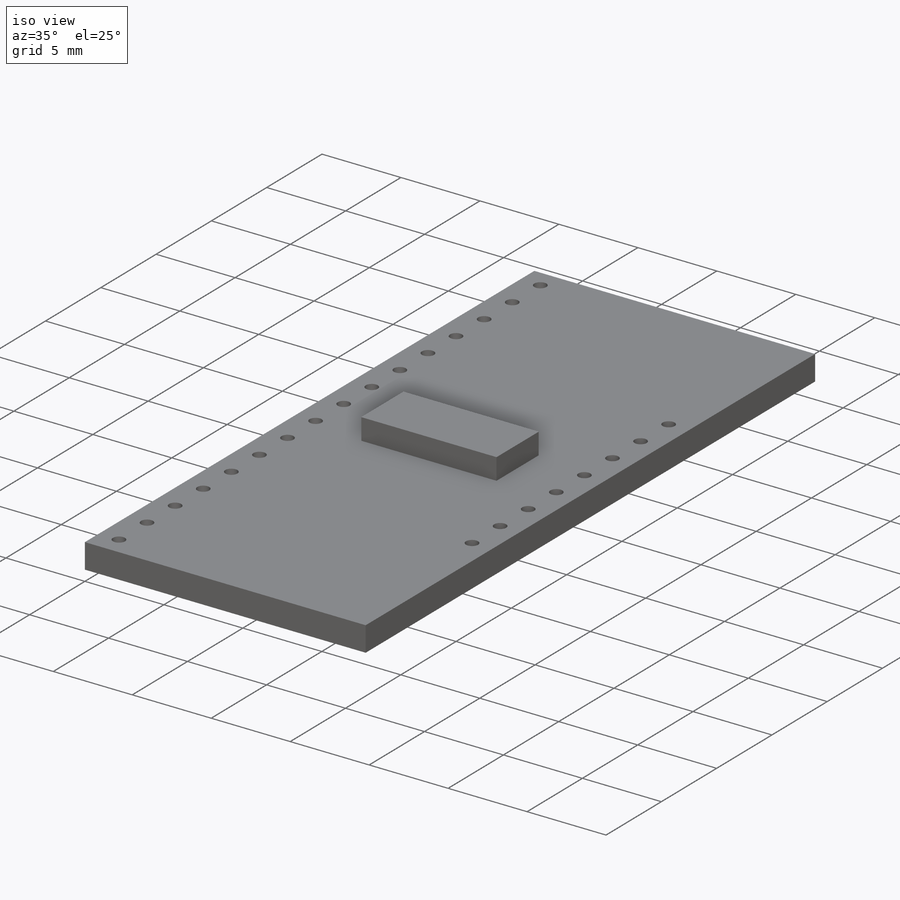
[diagram: iso view]
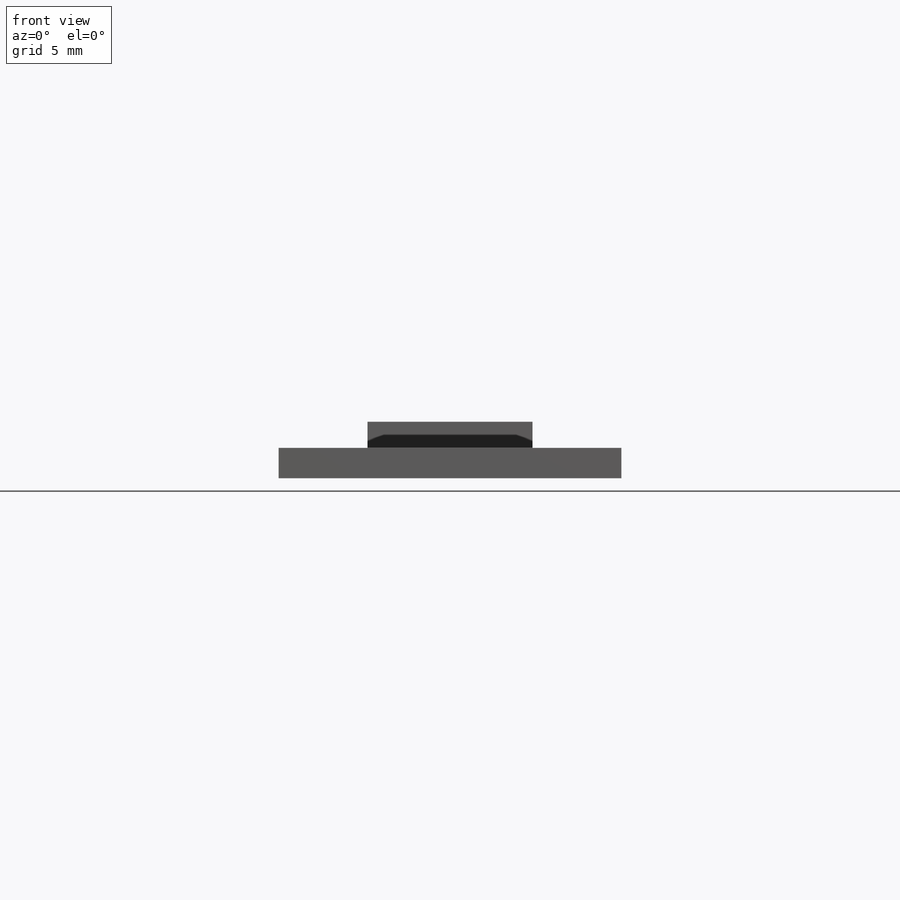
[diagram: front view]
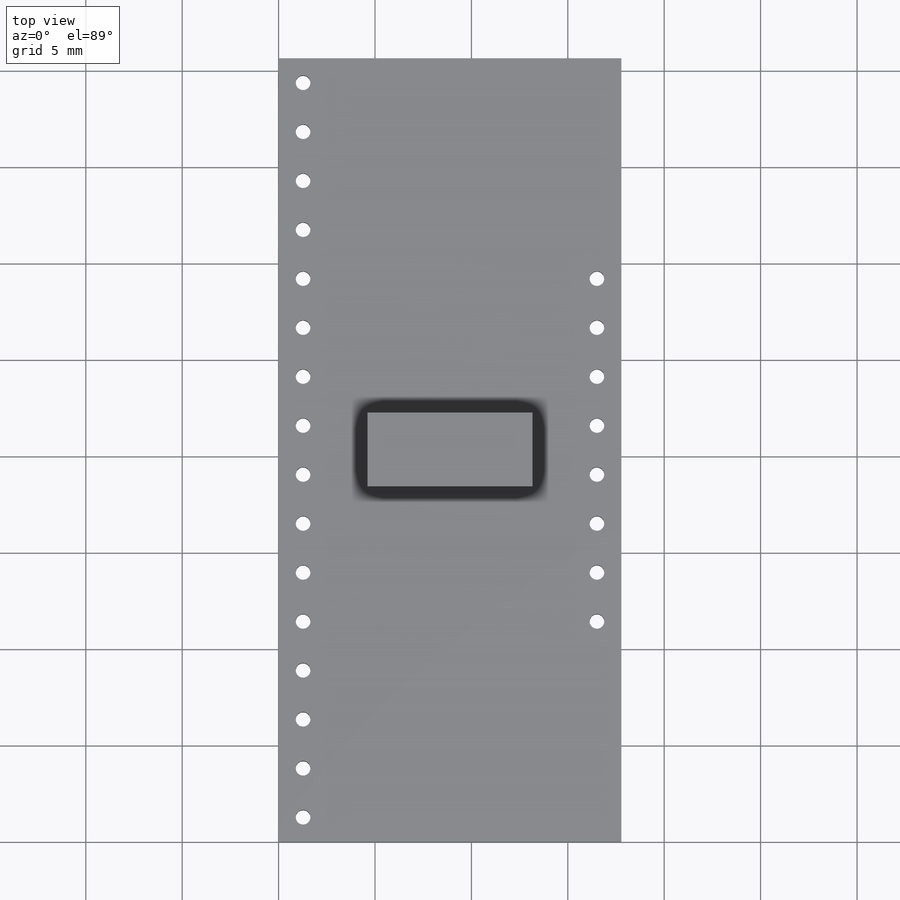
[diagram: top view]
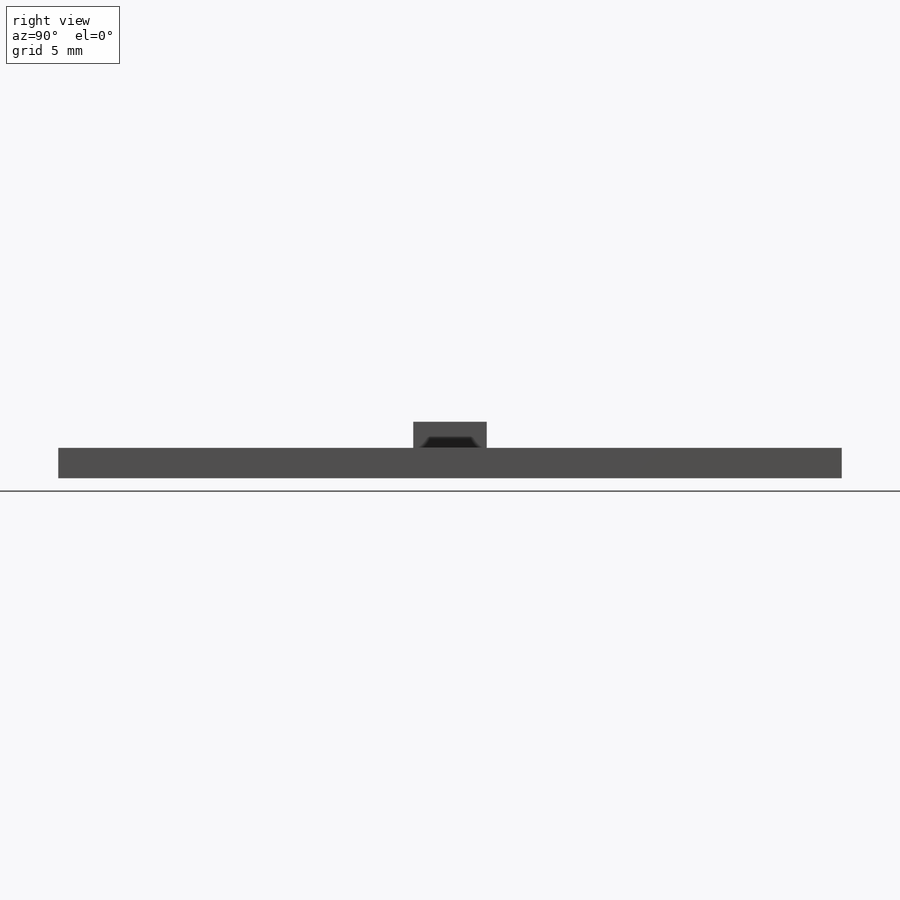
[diagram: right view]
SOLIDWORKS PART (.sldprt)
format: sldprt  version: not decoded by parser v0  size: 189,952 bytes
history: native  units: mm
features: sketch x4, extrude x2, cut_extrude x2, pattern_linear x2, material x1 (+13 scaffold rows collapsed)
feature tree (24):
  scaffold x13  (default folders/planes/origin — collapsed)
  material  "Material <not specified>"
  sketch  "Sketch1"  dims[D3=~4.10963mm D1=17.78mm D2=40.64mm]
  extrude  "PCB"  Depth=1.5748mm
  sketch  "Sketch2"  dims[D1=~5.097343mm]
  cut_extrude  "Hole Pattern seed 1"  Depth=1.5748mm
  pattern_linear  "HP 1x16"  Count1=16 Count2=1 Spacing1=2.54mm Spacing2=50mm
  sketch  "Sketch3"  dims[D1=~4.061177mm]
  cut_extrude  "Hole Pattern seed 2"  Depth=1.5748mm
  pattern_linear  "HP 1x08"  Count1=8 Count2=1 Spacing1=2.54mm Spacing2=50mm
  sketch  "Sketch4"  dims[D1=3.81mm D2=8.5598mm]
  extrude  "SSOP-24"  Depth=1.35128mm
decode coverage: 10 of 10 modeling features carry decoded parameters
note: ~ marks probable driven/reference dimensions
note: suppression state not decoded; provenance and decode notes live in map.json
